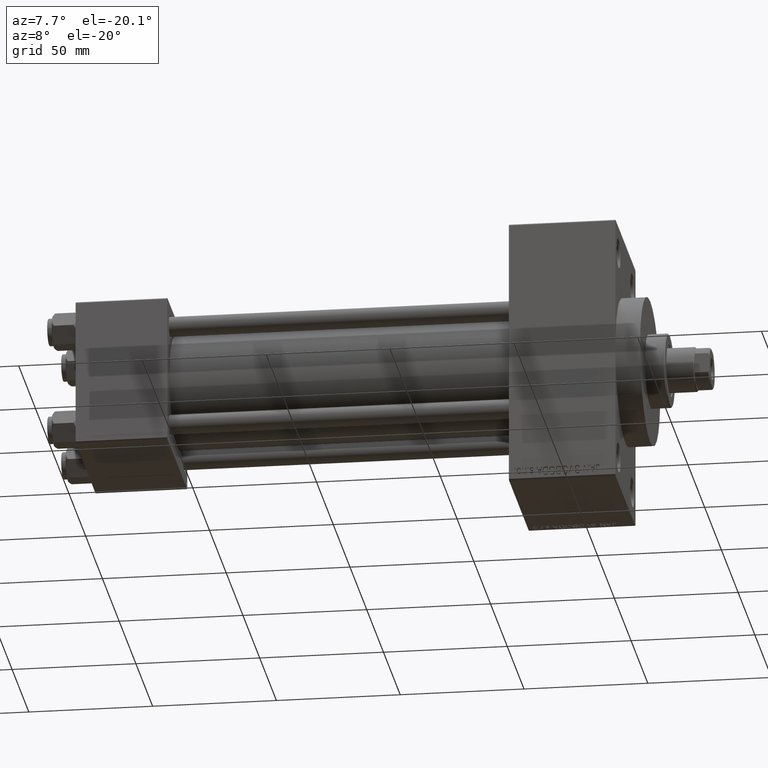
[diagram: clean part render]
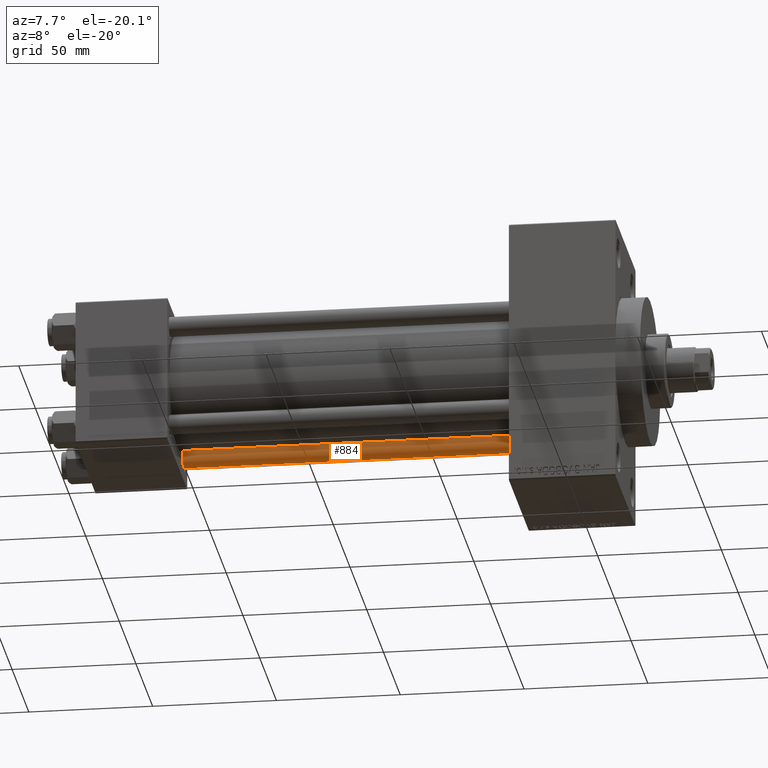
[diagram: same view with one face highlighted and labeled with its STEP entity id]
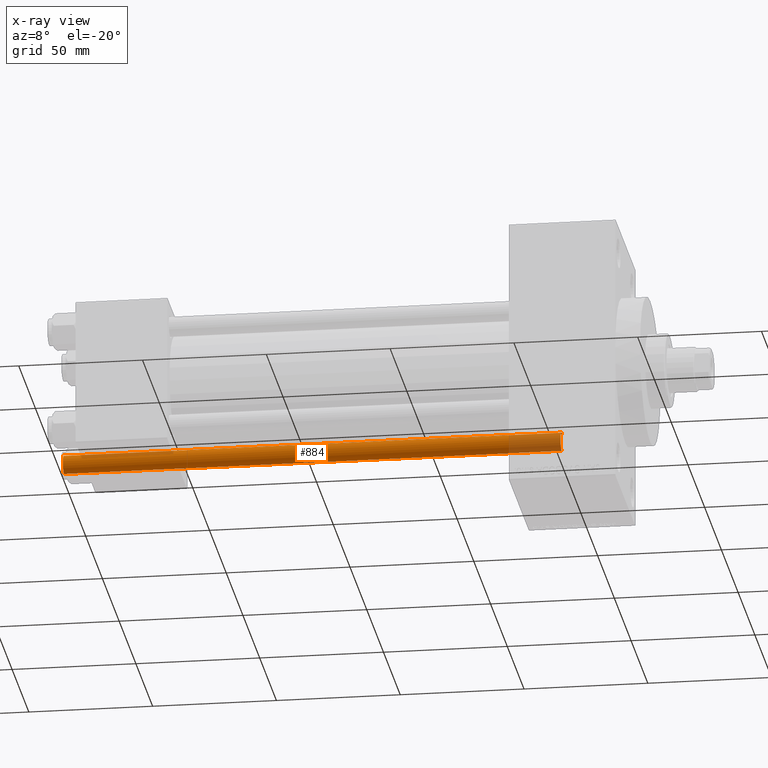
[diagram: x-ray of the same camera — body ghosted, the highlighted face saturated]
A machine part, auxiliary view. The second image highlights one B-rep face of the part: STEP entity #884.
The next image is the same camera in x-ray: the body ghosted, the highlighted face saturated — about 14% of this face is hidden behind the body in this view.
In plain terms, the highlighted cylindrical surface (edge-blend (fillet) strip) has radius 4 mm, axis along (1, -0, 0).
Its self-contained STEP definition (entity closure, byte-faithful):
#884 = ADVANCED_FACE ( 'NONE', ( #961 ), #19130, .T. ) ;
#961 = FACE_OUTER_BOUND ( 'NONE', #41189, .T. ) ;
#1588 = CIRCLE ( 'NONE', #32094, 4.000000000000000000 ) ;
#3558 = VERTEX_POINT ( 'NONE', #27696 ) ;
#3706 = AXIS2_PLACEMENT_3D ( 'NONE', #18891, #8364, #40620 ) ;
#3854 = CARTESIAN_POINT ( 'NONE',  ( 0.000000000000000000, 0.000000000000000000, 201.5000000000000000 ) ) ;
#3921 = AXIS2_PLACEMENT_3D ( 'NONE', #46806, #47035, #14343 ) ;
#4434 = VERTEX_POINT ( 'NONE', #28639 ) ;
#5096 = ORIENTED_EDGE ( 'NONE', *, *, #31341, .F. ) ;
#7053 = ORIENTED_EDGE ( 'NONE', *, *, #42156, .T. ) ;
#8364 = DIRECTION ( 'NONE',  ( -0.000000000000000000, -0.000000000000000000, -1.000000000000000000 ) ) ;
#10714 = CARTESIAN_POINT ( 'NONE',  ( -4.000000000000000000, 0.000000000000000000, 202.0000000000000000 ) ) ;
#10798 = DIRECTION ( 'NONE',  ( 1.000000000000000000, 0.000000000000000000, 0.000000000000000000 ) ) ;
#10954 = DIRECTION ( 'NONE',  ( -0.000000000000000000, -0.000000000000000000, -1.000000000000000000 ) ) ;
#13210 = LINE ( 'NONE', #42318, #33795 ) ;
#14150 = DIRECTION ( 'NONE',  ( -0.000000000000000000, -0.000000000000000000, -1.000000000000000000 ) ) ;
#14343 = DIRECTION ( 'NONE',  ( 1.000000000000000000, 0.000000000000000000, 0.000000000000000000 ) ) ;
#15350 = CIRCLE ( 'NONE', #3921, 4.000000000000000000 ) ;
#15843 = CARTESIAN_POINT ( 'NONE',  ( 4.000000000000000000, 4.898587196589412829E-16, 201.5000000000000000 ) ) ;
#16579 = ORIENTED_EDGE ( 'NONE', *, *, #46007, .T. ) ;
#17966 = DIRECTION ( 'NONE',  ( 0.000000000000000000, 0.000000000000000000, -1.000000000000000000 ) ) ;
#18891 = CARTESIAN_POINT ( 'NONE',  ( 0.000000000000000000, 0.000000000000000000, 202.0000000000000000 ) ) ;
#19130 = CYLINDRICAL_SURFACE ( 'NONE', #3706, 4.000000000000000000 ) ;
#20513 = VERTEX_POINT ( 'NONE', #23699 ) ;
#22414 = LINE ( 'NONE', #10714, #41759 ) ;
#23699 = CARTESIAN_POINT ( 'NONE',  ( -4.000000000000000000, 0.000000000000000000, 0.5000000000000004441 ) ) ;
#27696 = CARTESIAN_POINT ( 'NONE',  ( -4.000000000000000000, 0.000000000000000000, 201.5000000000000000 ) ) ;
#28639 = CARTESIAN_POINT ( 'NONE',  ( 4.000000000000000000, 4.898587196589412829E-16, 0.5000000000000004441 ) ) ;
#29264 = VERTEX_POINT ( 'NONE', #15843 ) ;
#30124 = ORIENTED_EDGE ( 'NONE', *, *, #33748, .T. ) ;
#31341 = EDGE_CURVE ( 'NONE', #29264, #4434, #13210, .T. ) ;
#32094 = AXIS2_PLACEMENT_3D ( 'NONE', #3854, #17966, #10798 ) ;
#33748 = EDGE_CURVE ( 'NONE', #20513, #4434, #15350, .T. ) ;
#33795 = VECTOR ( 'NONE', #14150, 1000.000000000000000 ) ;
#40620 = DIRECTION ( 'NONE',  ( -1.000000000000000000, 0.000000000000000000, 0.000000000000000000 ) ) ;
#41189 = EDGE_LOOP ( 'NONE', ( #5096, #16579, #7053, #30124 ) ) ;
#41759 = VECTOR ( 'NONE', #10954, 1000.000000000000000 ) ;
#42156 = EDGE_CURVE ( 'NONE', #3558, #20513, #22414, .T. ) ;
#42318 = CARTESIAN_POINT ( 'NONE',  ( 4.000000000000000000, 4.898587196589412829E-16, 202.0000000000000000 ) ) ;
#46007 = EDGE_CURVE ( 'NONE', #29264, #3558, #1588, .T. ) ;
#46806 = CARTESIAN_POINT ( 'NONE',  ( 0.000000000000000000, 0.000000000000000000, 0.5000000000000004441 ) ) ;
#47035 = DIRECTION ( 'NONE',  ( -0.000000000000000000, -0.000000000000000000, 1.000000000000000000 ) ) ;